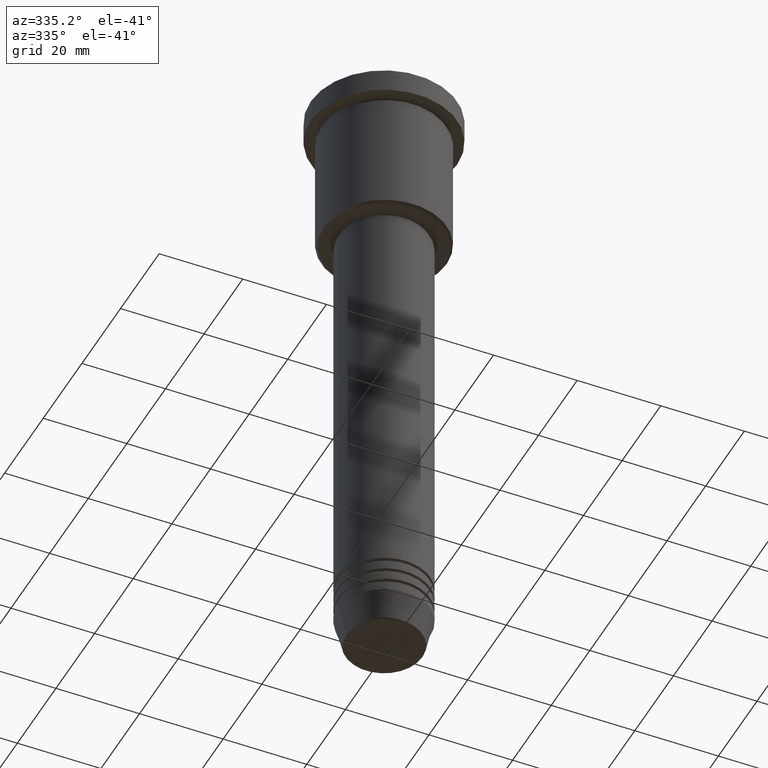
[diagram: clean part render]
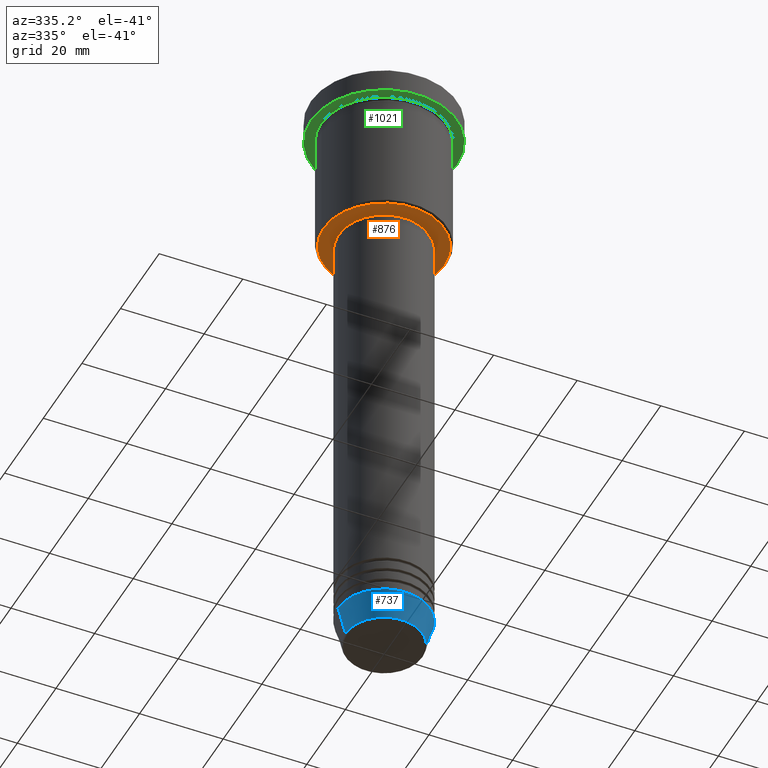
[diagram: same view with three faces highlighted in distinct colors, each labeled with its STEP entity id]
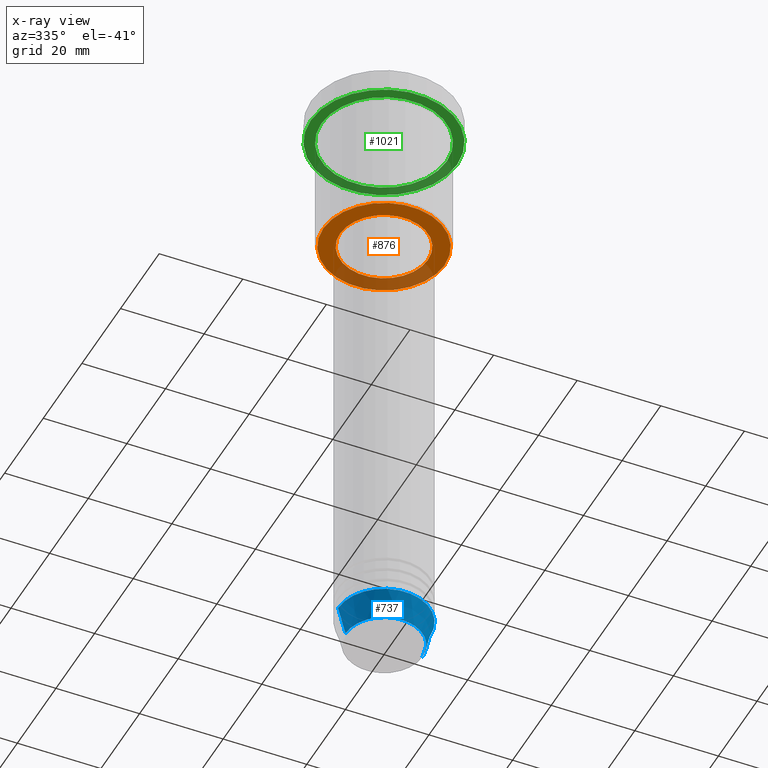
[diagram: x-ray of the same camera — body ghosted, the three highlighted faces saturated]
A machine part, auxiliary view with three faces highlighted in distinct colors.
The next image is the same camera in x-ray (body ghosted, the three faces saturated) — at least one of them is partly hidden behind the body in this view.
Their STEP definitions:

[orange] entity #876 — the highlighted planar face has unit normal (0, 0, -1).
#50 = DIRECTION ( 'NONE',  ( 0.000000000000000000, 0.000000000000000000, -1.000000000000000000 ) ) ;
#56 = FACE_OUTER_BOUND ( 'NONE', #190, .T. ) ;
#67 = AXIS2_PLACEMENT_3D ( 'NONE', #268, #262, #638 ) ;
#79 = VERTEX_POINT ( 'NONE', #469 ) ;
#123 = CIRCLE ( 'NONE', #67, 10.49999999999999822 ) ;
#190 = EDGE_LOOP ( 'NONE', ( #793, #263 ) ) ;
#203 = CARTESIAN_POINT ( 'NONE',  ( 0.000000000000000000, 0.000000000000000000, -36.00000000000000711 ) ) ;
#239 = EDGE_CURVE ( 'NONE', #1095, #79, #123, .T. ) ;
#262 = DIRECTION ( 'NONE',  ( -0.000000000000000000, -0.000000000000000000, 1.000000000000000000 ) ) ;
#263 = ORIENTED_EDGE ( 'NONE', *, *, #778, .T. ) ;
#268 = CARTESIAN_POINT ( 'NONE',  ( 0.000000000000000000, 0.000000000000000000, -36.00000000000000711 ) ) ;
#315 = CARTESIAN_POINT ( 'NONE',  ( -14.49999999999998401, 1.806354028742345013E-15, -36.00000000000000711 ) ) ;
#324 = DIRECTION ( 'NONE',  ( -0.000000000000000000, -0.000000000000000000, 1.000000000000000000 ) ) ;
#329 = CARTESIAN_POINT ( 'NONE',  ( 0.000000000000000000, 15.00000000000000000, -36.00000000000000711 ) ) ;
#338 = PLANE ( 'NONE',  #785 ) ;
#379 = DIRECTION ( 'NONE',  ( 0.000000000000000000, 0.000000000000000000, -1.000000000000000000 ) ) ;
#446 = ORIENTED_EDGE ( 'NONE', *, *, #239, .T. ) ;
#459 = CIRCLE ( 'NONE', #1088, 10.49999999999999822 ) ;
#469 = CARTESIAN_POINT ( 'NONE',  ( -10.49999999999999822, 1.285879139104720633E-15, -36.00000000000000711 ) ) ;
#522 = EDGE_CURVE ( 'NONE', #635, #757, #959, .T. ) ;
#569 = DIRECTION ( 'NONE',  ( -1.000000000000000000, 0.000000000000000000, 0.000000000000000000 ) ) ;
#601 = CARTESIAN_POINT ( 'NONE',  ( 0.000000000000000000, 0.000000000000000000, -36.00000000000000711 ) ) ;
#633 = CIRCLE ( 'NONE', #1159, 14.49999999999998401 ) ;
#635 = VERTEX_POINT ( 'NONE', #732 ) ;
#638 = DIRECTION ( 'NONE',  ( 1.000000000000000000, 0.000000000000000000, 0.000000000000000000 ) ) ;
#647 = EDGE_CURVE ( 'NONE', #79, #1095, #459, .T. ) ;
#695 = CARTESIAN_POINT ( 'NONE',  ( 0.000000000000000000, 0.000000000000000000, -36.00000000000000711 ) ) ;
#707 = FACE_BOUND ( 'NONE', #736, .T. ) ;
#732 = CARTESIAN_POINT ( 'NONE',  ( 14.49999999999998401, 0.000000000000000000, -36.00000000000000711 ) ) ;
#736 = EDGE_LOOP ( 'NONE', ( #446, #896 ) ) ;
#749 = AXIS2_PLACEMENT_3D ( 'NONE', #203, #379, #569 ) ;
#757 = VERTEX_POINT ( 'NONE', #315 ) ;
#778 = EDGE_CURVE ( 'NONE', #757, #635, #633, .T. ) ;
#785 = AXIS2_PLACEMENT_3D ( 'NONE', #329, #1061, #983 ) ;
#793 = ORIENTED_EDGE ( 'NONE', *, *, #522, .T. ) ;
#876 = ADVANCED_FACE ( 'NONE', ( #56, #707 ), #338, .T. ) ;
#896 = ORIENTED_EDGE ( 'NONE', *, *, #647, .T. ) ;
#945 = DIRECTION ( 'NONE',  ( -1.000000000000000000, 0.000000000000000000, 0.000000000000000000 ) ) ;
#952 = DIRECTION ( 'NONE',  ( 1.000000000000000000, 0.000000000000000000, 0.000000000000000000 ) ) ;
#959 = CIRCLE ( 'NONE', #749, 14.49999999999998401 ) ;
#965 = CARTESIAN_POINT ( 'NONE',  ( 10.49999999999999822, 0.000000000000000000, -36.00000000000000711 ) ) ;
#983 = DIRECTION ( 'NONE',  ( -1.000000000000000000, 0.000000000000000000, -0.000000000000000000 ) ) ;
#1061 = DIRECTION ( 'NONE',  ( 0.000000000000000000, 0.000000000000000000, -1.000000000000000000 ) ) ;
#1088 = AXIS2_PLACEMENT_3D ( 'NONE', #695, #324, #952 ) ;
#1095 = VERTEX_POINT ( 'NONE', #965 ) ;
#1159 = AXIS2_PLACEMENT_3D ( 'NONE', #601, #50, #945 ) ;

[blue] entity #737 — the highlighted conical surface has half-angle 15 deg.
#83 = CARTESIAN_POINT ( 'NONE',  ( 11.00000000000000000, 0.000000000000000000, -144.0000000000000284 ) ) ;
#115 = EDGE_CURVE ( 'NONE', #931, #546, #742, .T. ) ;
#132 = DIRECTION ( 'NONE',  ( 1.000000000000000000, 0.000000000000000000, 0.000000000000000000 ) ) ;
#155 = EDGE_CURVE ( 'NONE', #931, #331, #278, .T. ) ;
#222 = AXIS2_PLACEMENT_3D ( 'NONE', #512, #961, #864 ) ;
#229 = EDGE_CURVE ( 'NONE', #331, #296, #438, .T. ) ;
#261 = DIRECTION ( 'NONE',  ( 1.000000000000000000, 0.000000000000000000, 0.000000000000000000 ) ) ;
#276 = DIRECTION ( 'NONE',  ( -0.2588190451025213501, 3.169619151431772337E-17, 0.9659258262890680902 ) ) ;
#278 = CIRCLE ( 'NONE', #992, 9.223655072137189492 ) ;
#287 = ORIENTED_EDGE ( 'NONE', *, *, #115, .F. ) ;
#296 = VERTEX_POINT ( 'NONE', #943 ) ;
#331 = VERTEX_POINT ( 'NONE', #443 ) ;
#363 = ORIENTED_EDGE ( 'NONE', *, *, #229, .T. ) ;
#421 = CARTESIAN_POINT ( 'NONE',  ( -9.223655072137189492, 1.238341722557647202E-15, -150.6294095225512706 ) ) ;
#438 = LINE ( 'NONE', #83, #1142 ) ;
#443 = CARTESIAN_POINT ( 'NONE',  ( 9.223655072137189492, 0.000000000000000000, -150.6294095225512706 ) ) ;
#445 = DIRECTION ( 'NONE',  ( -0.000000000000000000, -0.000000000000000000, 1.000000000000000000 ) ) ;
#492 = ORIENTED_EDGE ( 'NONE', *, *, #155, .T. ) ;
#505 = FACE_OUTER_BOUND ( 'NONE', #944, .T. ) ;
#512 = CARTESIAN_POINT ( 'NONE',  ( 0.000000000000000000, 0.000000000000000000, -144.0000000000000284 ) ) ;
#534 = DIRECTION ( 'NONE',  ( 0.2588190451025213501, 0.000000000000000000, 0.9659258262890680902 ) ) ;
#535 = VECTOR ( 'NONE', #276, 1000.000000000000000 ) ;
#546 = VERTEX_POINT ( 'NONE', #750 ) ;
#560 = CONICAL_SURFACE ( 'NONE', #960, 11.00000000000000000, 0.2617993877991500740 ) ;
#657 = CIRCLE ( 'NONE', #222, 11.00000000000000000 ) ;
#737 = ADVANCED_FACE ( 'NONE', ( #505 ), #560, .T. ) ;
#742 = LINE ( 'NONE', #1102, #535 ) ;
#750 = CARTESIAN_POINT ( 'NONE',  ( -11.00000000000000000, 1.347111479062088405E-15, -144.0000000000000284 ) ) ;
#798 = ORIENTED_EDGE ( 'NONE', *, *, #1103, .F. ) ;
#864 = DIRECTION ( 'NONE',  ( 1.000000000000000000, 0.000000000000000000, 0.000000000000000000 ) ) ;
#868 = CARTESIAN_POINT ( 'NONE',  ( 0.000000000000000000, 0.000000000000000000, -144.0000000000000284 ) ) ;
#931 = VERTEX_POINT ( 'NONE', #421 ) ;
#943 = CARTESIAN_POINT ( 'NONE',  ( 11.00000000000000000, 0.000000000000000000, -144.0000000000000284 ) ) ;
#944 = EDGE_LOOP ( 'NONE', ( #287, #492, #363, #798 ) ) ;
#960 = AXIS2_PLACEMENT_3D ( 'NONE', #868, #1148, #132 ) ;
#961 = DIRECTION ( 'NONE',  ( -0.000000000000000000, -0.000000000000000000, 1.000000000000000000 ) ) ;
#992 = AXIS2_PLACEMENT_3D ( 'NONE', #1081, #445, #261 ) ;
#1081 = CARTESIAN_POINT ( 'NONE',  ( 0.000000000000000000, 0.000000000000000000, -150.6294095225512706 ) ) ;
#1102 = CARTESIAN_POINT ( 'NONE',  ( -11.00000000000000000, 1.347111479062088405E-15, -144.0000000000000284 ) ) ;
#1103 = EDGE_CURVE ( 'NONE', #546, #296, #657, .T. ) ;
#1142 = VECTOR ( 'NONE', #534, 1000.000000000000000 ) ;
#1148 = DIRECTION ( 'NONE',  ( -0.000000000000000000, -0.000000000000000000, 1.000000000000000000 ) ) ;

[green] entity #1021 — the highlighted planar face has unit normal (0, 0, -1).
#19 = ORIENTED_EDGE ( 'NONE', *, *, #231, .F. ) ;
#51 = AXIS2_PLACEMENT_3D ( 'NONE', #164, #65, #735 ) ;
#57 = VERTEX_POINT ( 'NONE', #399 ) ;
#65 = DIRECTION ( 'NONE',  ( -0.000000000000000000, -0.000000000000000000, 1.000000000000000000 ) ) ;
#70 = AXIS2_PLACEMENT_3D ( 'NONE', #727, #465, #198 ) ;
#113 = DIRECTION ( 'NONE',  ( -0.000000000000000000, -0.000000000000000000, 1.000000000000000000 ) ) ;
#121 = CARTESIAN_POINT ( 'NONE',  ( -15.00000000000000000, 0.000000000000000000, -5.999999999999994671 ) ) ;
#128 = CARTESIAN_POINT ( 'NONE',  ( 15.00000000000000000, 1.836970198721029589E-15, -5.999999999999994671 ) ) ;
#151 = DIRECTION ( 'NONE',  ( -1.000000000000000000, 0.000000000000000000, 0.000000000000000000 ) ) ;
#164 = CARTESIAN_POINT ( 'NONE',  ( 0.000000000000000000, 0.000000000000000000, -5.999999999999995559 ) ) ;
#198 = DIRECTION ( 'NONE',  ( 1.000000000000000000, 0.000000000000000000, 0.000000000000000000 ) ) ;
#199 = DIRECTION ( 'NONE',  ( -1.000000000000000000, 0.000000000000000000, 0.000000000000000000 ) ) ;
#231 = EDGE_CURVE ( 'NONE', #907, #57, #592, .T. ) ;
#286 = DIRECTION ( 'NONE',  ( -0.000000000000000000, -0.000000000000000000, 1.000000000000000000 ) ) ;
#299 = CIRCLE ( 'NONE', #432, 15.00000000000000000 ) ;
#332 = AXIS2_PLACEMENT_3D ( 'NONE', #928, #286, #199 ) ;
#361 = DIRECTION ( 'NONE',  ( 0.000000000000000000, 0.000000000000000000, -1.000000000000000000 ) ) ;
#399 = CARTESIAN_POINT ( 'NONE',  ( 17.50000000000000000, 0.000000000000000000, -5.999999999999995559 ) ) ;
#432 = AXIS2_PLACEMENT_3D ( 'NONE', #671, #113, #151 ) ;
#453 = FACE_BOUND ( 'NONE', #709, .T. ) ;
#454 = EDGE_CURVE ( 'NONE', #693, #1170, #881, .T. ) ;
#455 = EDGE_CURVE ( 'NONE', #1170, #693, #299, .T. ) ;
#465 = DIRECTION ( 'NONE',  ( -0.000000000000000000, -0.000000000000000000, 1.000000000000000000 ) ) ;
#485 = CIRCLE ( 'NONE', #70, 17.50000000000000000 ) ;
#592 = CIRCLE ( 'NONE', #51, 17.50000000000000000 ) ;
#607 = ORIENTED_EDGE ( 'NONE', *, *, #454, .T. ) ;
#671 = CARTESIAN_POINT ( 'NONE',  ( 0.000000000000000000, 0.000000000000000000, -5.999999999999995559 ) ) ;
#693 = VERTEX_POINT ( 'NONE', #128 ) ;
#709 = EDGE_LOOP ( 'NONE', ( #1004, #607 ) ) ;
#727 = CARTESIAN_POINT ( 'NONE',  ( 0.000000000000000000, 0.000000000000000000, -5.999999999999995559 ) ) ;
#734 = DIRECTION ( 'NONE',  ( -1.000000000000000000, 0.000000000000000000, -0.000000000000000000 ) ) ;
#735 = DIRECTION ( 'NONE',  ( 1.000000000000000000, 0.000000000000000000, 0.000000000000000000 ) ) ;
#821 = FACE_OUTER_BOUND ( 'NONE', #1085, .T. ) ;
#857 = ORIENTED_EDGE ( 'NONE', *, *, #953, .F. ) ;
#881 = CIRCLE ( 'NONE', #332, 15.00000000000000000 ) ;
#907 = VERTEX_POINT ( 'NONE', #1076 ) ;
#918 = CARTESIAN_POINT ( 'NONE',  ( 0.000000000000000000, 17.50000000000000000, -5.999999999999995559 ) ) ;
#928 = CARTESIAN_POINT ( 'NONE',  ( 0.000000000000000000, 0.000000000000000000, -5.999999999999995559 ) ) ;
#953 = EDGE_CURVE ( 'NONE', #57, #907, #485, .T. ) ;
#1004 = ORIENTED_EDGE ( 'NONE', *, *, #455, .T. ) ;
#1019 = AXIS2_PLACEMENT_3D ( 'NONE', #918, #361, #734 ) ;
#1021 = ADVANCED_FACE ( 'NONE', ( #453, #821 ), #1022, .T. ) ;
#1022 = PLANE ( 'NONE',  #1019 ) ;
#1076 = CARTESIAN_POINT ( 'NONE',  ( -17.50000000000000000, 2.143131898507868248E-15, -5.999999999999995559 ) ) ;
#1085 = EDGE_LOOP ( 'NONE', ( #857, #19 ) ) ;
#1170 = VERTEX_POINT ( 'NONE', #121 ) ;